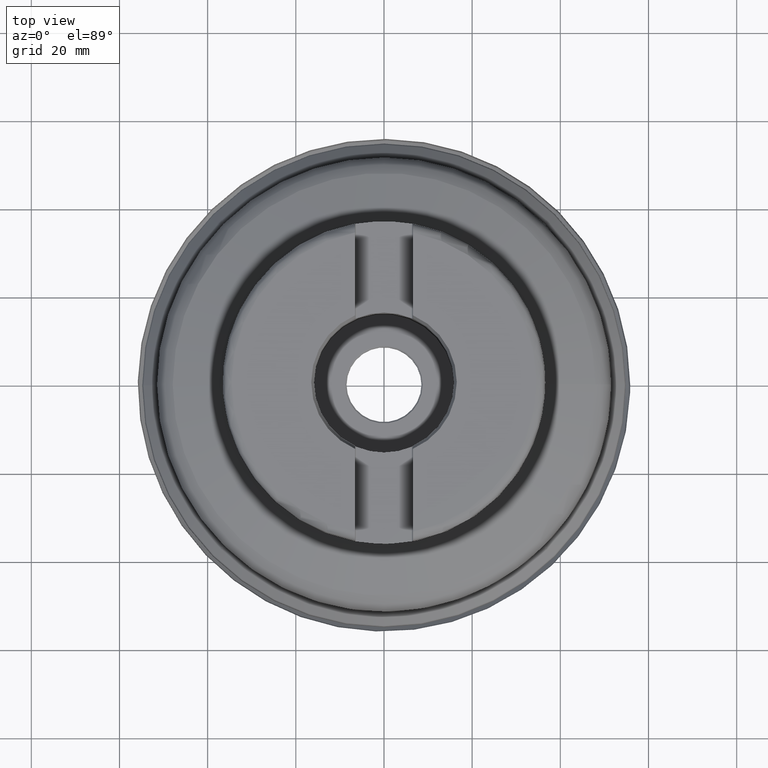
[diagram: clean part render]
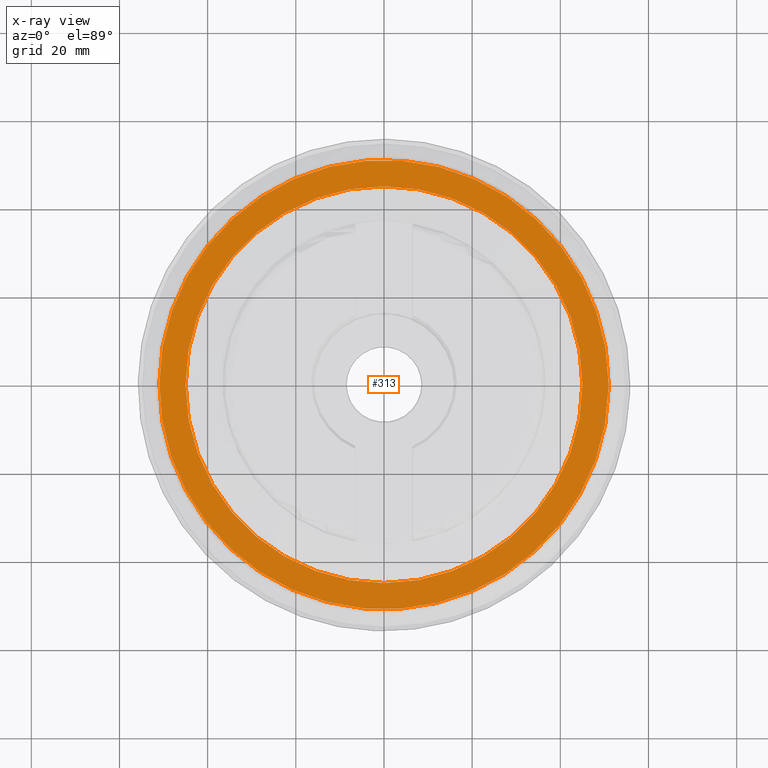
[diagram: x-ray — body ghosted, one internal face saturated and labeled with its STEP entity id]
A machine part, top view, then the same camera in x-ray: the body is ghosted and one INTERNAL B-rep face — a face not visible from any outside direction — is saturated and labeled: STEP entity #313.
In plain terms, the highlighted face is a SurfaceOfRevolution surface.
Its self-contained STEP definition (entity closure, byte-faithful):
#125=SURFACE_OF_REVOLUTION('',#225,#147);
#147=AXIS1_PLACEMENT('',#2016,#1346);
#225=LINE('',#2015,#253);
#253=VECTOR('',#1345,5.97815706144228);
#313=ADVANCED_FACE('',(#414,#415),#125,.F.);
#414=FACE_BOUND('',#530,.T.);
#415=FACE_BOUND('',#531,.T.);
#530=EDGE_LOOP('',(#724));
#531=EDGE_LOOP('',(#725));
#724=ORIENTED_EDGE('',*,*,#915,.T.);
#725=ORIENTED_EDGE('',*,*,#916,.F.);
#818=VERTEX_POINT('',#2007);
#819=VERTEX_POINT('',#2014);
#915=EDGE_CURVE('',#818,#818,#972,.T.);
#916=EDGE_CURVE('',#819,#819,#973,.T.);
#972=CIRCLE('',#1120,45.0059612621945);
#973=CIRCLE('',#1121,50.9583929298738);
#1120=AXIS2_PLACEMENT_3D('',#2006,#1340,#1341);
#1121=AXIS2_PLACEMENT_3D('',#2013,#1343,#1344);
#1340=DIRECTION('',(1.17145536458252E-15,0.,1.));
#1341=DIRECTION('',(1.,0.,-1.15632913551432E-15));
#1343=DIRECTION('',(1.17145536458252E-15,0.,1.));
#1344=DIRECTION('',(1.,0.,-1.1574265747426E-15));
#1345=DIRECTION('',(1.95955936343409E-18,0.99999860094217,0.00167275631891653));
#1346=DIRECTION('',(1.17145536458252E-15,0.,1.));
#2006=CARTESIAN_POINT('',(1.84942235231729E-14,0.,15.7873906956445));
#2007=CARTESIAN_POINT('',(45.0059612621945,0.,15.7873906956444));
#2013=CARTESIAN_POINT('',(1.84825089693747E-14,0.,15.7773906955144));
#2014=CARTESIAN_POINT('',(50.9583929298739,0.,15.7773906955143));
#2015=CARTESIAN_POINT('',(4.43722269904489,-50.7648387277657,15.7773906956444));
#2016=CARTESIAN_POINT('',(0.,0.,0.));